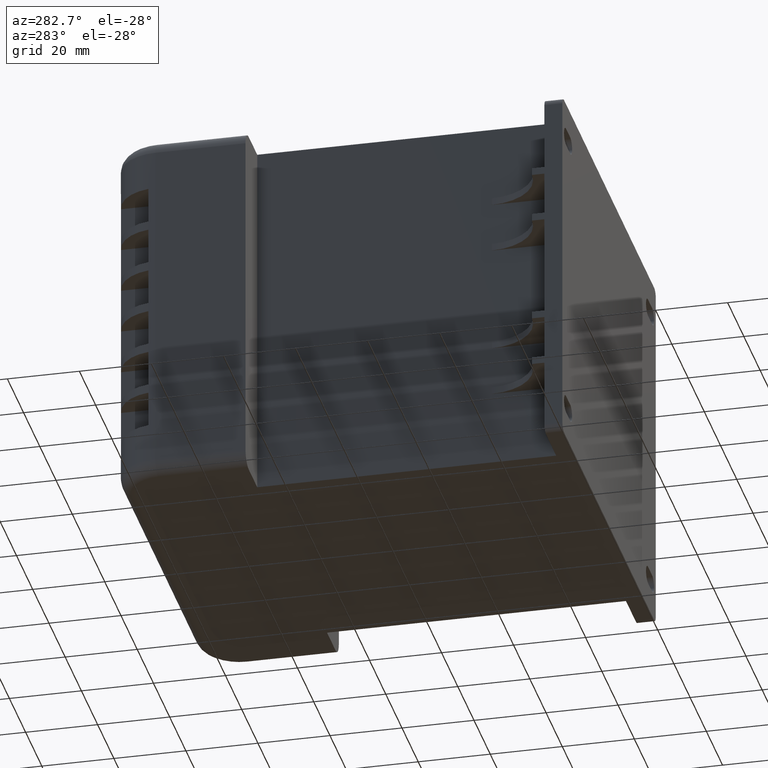
[diagram: clean part render]
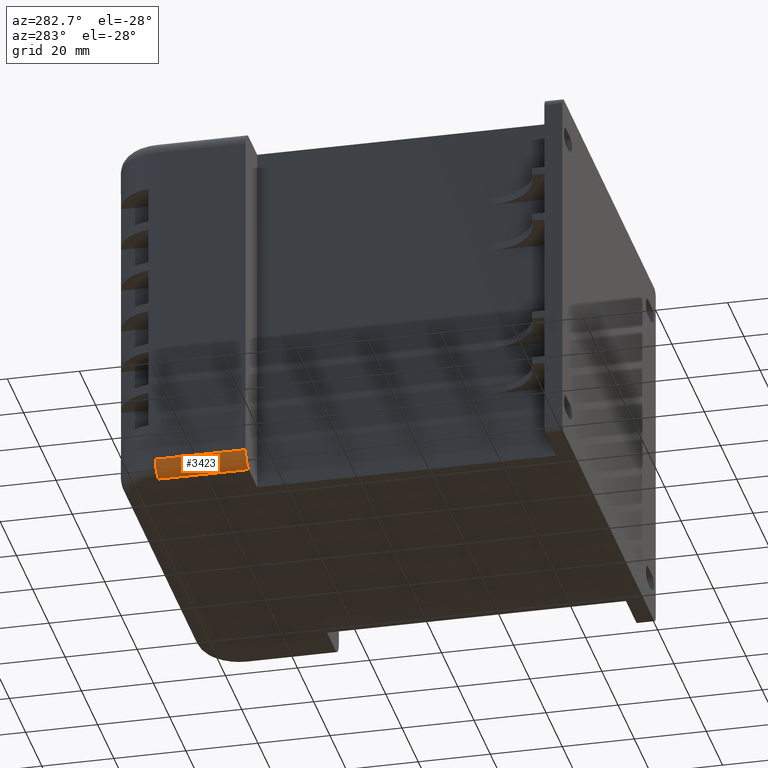
[diagram: same view with one face highlighted and labeled with its STEP entity id]
A machine part, auxiliary view. The second image highlights one B-rep face of the part: STEP entity #3423.
In plain terms, the highlighted cylindrical surface (edge-blend (fillet) strip) has radius 4 mm, axis along (0, 1, 0).
Its self-contained STEP definition (entity closure, byte-faithful):
#82=CYLINDRICAL_SURFACE('',#3810,4.);
#129=CIRCLE('',#3724,4.);
#170=CIRCLE('',#3808,4.00000000000003);
#384=FACE_OUTER_BOUND('',#595,.T.);
#595=EDGE_LOOP('',(#2630,#2631,#2632,#2633));
#876=LINE('',#5371,#1196);
#909=LINE('',#5533,#1229);
#1196=VECTOR('',#4391,10.);
#1229=VECTOR('',#4588,10.);
#1478=VERTEX_POINT('',#5354);
#1479=VERTEX_POINT('',#5356);
#1484=VERTEX_POINT('',#5370);
#1531=VERTEX_POINT('',#5529);
#1841=EDGE_CURVE('',#1479,#1478,#129,.T.);
#1848=EDGE_CURVE('',#1484,#1479,#876,.T.);
#1919=EDGE_CURVE('',#1484,#1531,#170,.T.);
#1921=EDGE_CURVE('',#1478,#1531,#909,.T.);
#2630=ORIENTED_EDGE('',*,*,#1841,.T.);
#2631=ORIENTED_EDGE('',*,*,#1921,.T.);
#2632=ORIENTED_EDGE('',*,*,#1919,.F.);
#2633=ORIENTED_EDGE('',*,*,#1848,.T.);
#3423=ADVANCED_FACE('',(#384),#82,.T.);
#3724=AXIS2_PLACEMENT_3D('',#5357,#4377,#4378);
#3808=AXIS2_PLACEMENT_3D('',#5530,#4582,#4583);
#3810=AXIS2_PLACEMENT_3D('',#5532,#4586,#4587);
#4377=DIRECTION('center_axis',(0.,1.,0.));
#4378=DIRECTION('ref_axis',(-0.70710678118655,0.,-0.707106781186546));
#4391=DIRECTION('',(0.,-1.,0.));
#4582=DIRECTION('center_axis',(0.,1.,0.));
#4583=DIRECTION('ref_axis',(0.,0.,-1.));
#4586=DIRECTION('center_axis',(0.,1.,0.));
#4587=DIRECTION('ref_axis',(-0.70710678118655,0.,-0.707106781186546));
#4588=DIRECTION('',(0.,1.,0.));
#5354=CARTESIAN_POINT('',(-115.,0.,4.));
#5356=CARTESIAN_POINT('',(-111.,0.,1.90355566259853E-30));
#5357=CARTESIAN_POINT('Origin',(-111.,0.,4.));
#5370=CARTESIAN_POINT('',(-111.,25.,1.37193200908002E-31));
#5371=CARTESIAN_POINT('',(-111.,0.,0.));
#5529=CARTESIAN_POINT('',(-115.,25.,4.00000000000003));
#5530=CARTESIAN_POINT('Origin',(-111.,25.,4.00000000000003));
#5532=CARTESIAN_POINT('Origin',(-111.,0.,4.));
#5533=CARTESIAN_POINT('',(-115.,0.,4.));